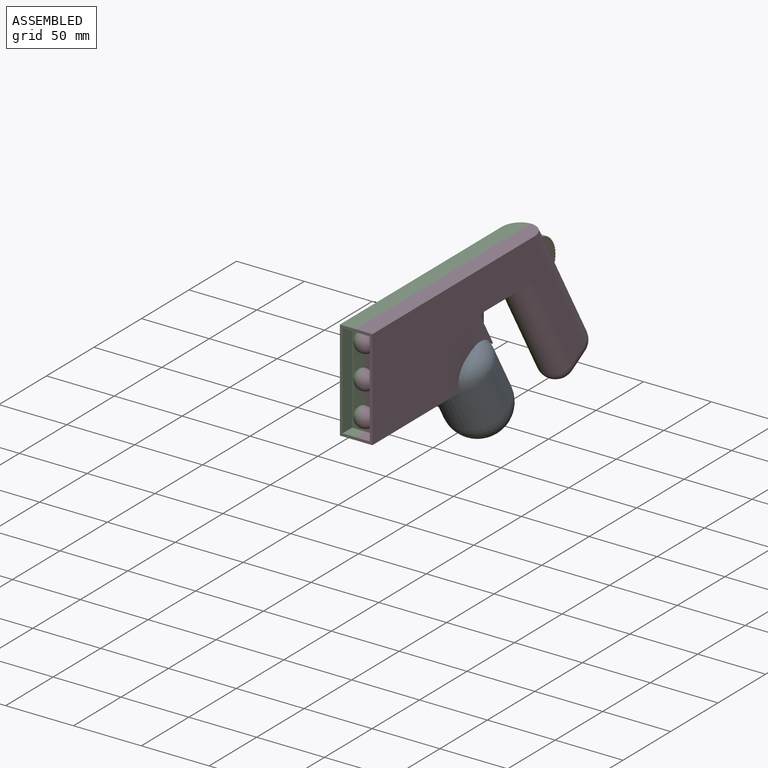
[diagram: assembled view]
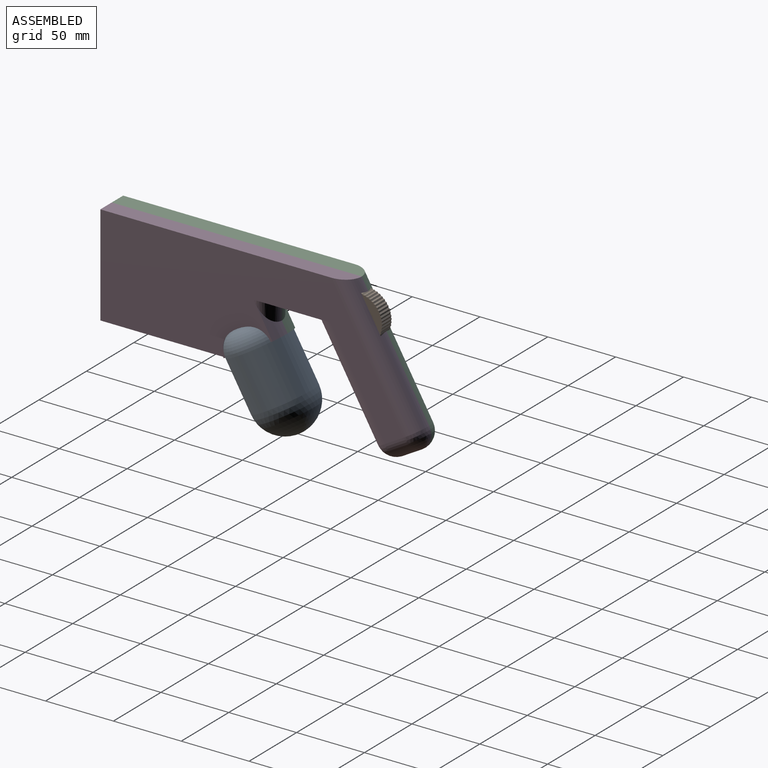
[diagram: assembled view, second angle]
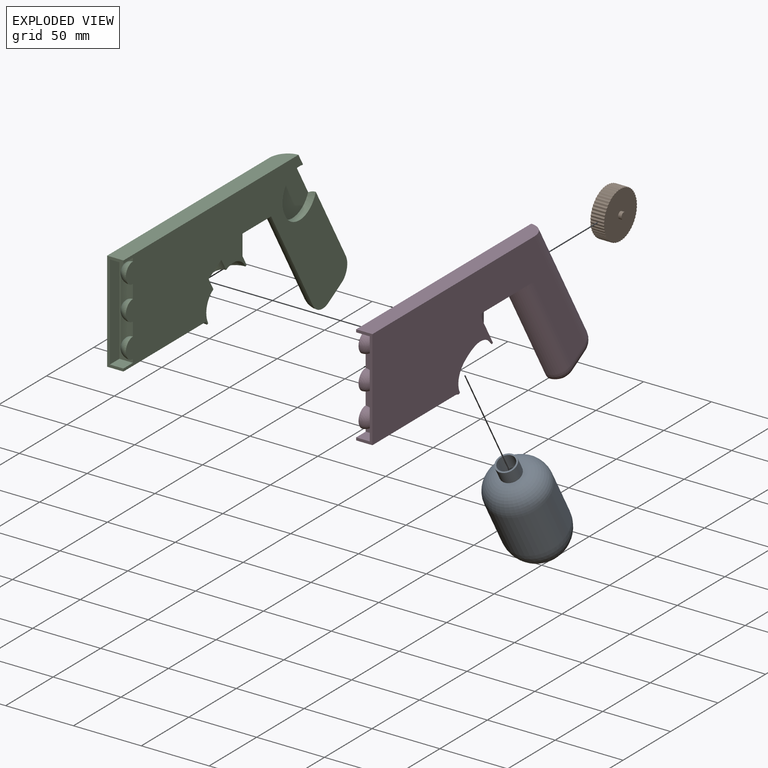
[diagram: exploded view]
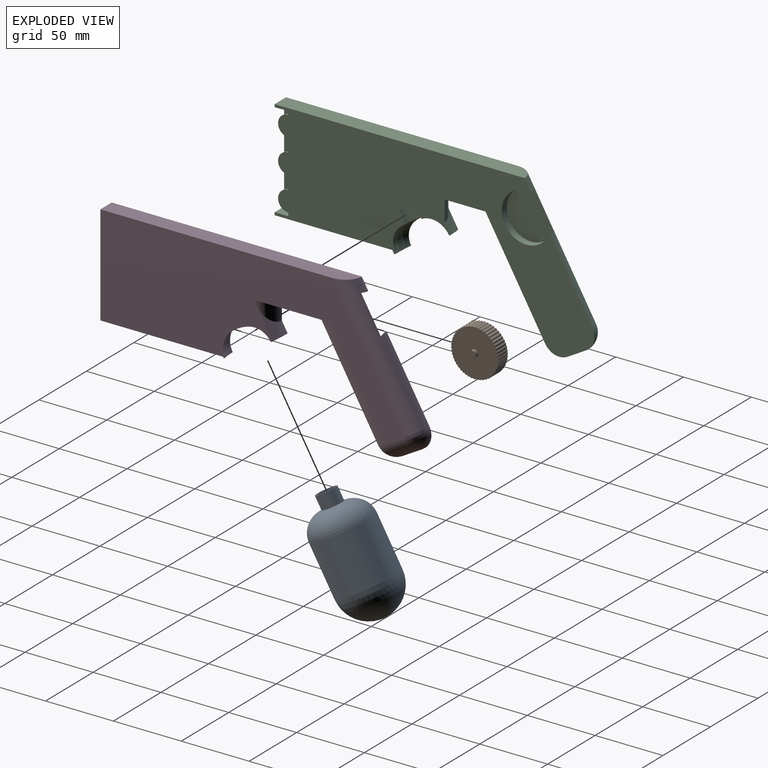
[diagram: exploded view, second angle]
ASSEMBLY  parts=4 mates=3
PART A: 9 faces, bbox 45x45x85 mm
  f0: cylinder r=22.5mm len=45mm, axis (0,0,-1), area 5301.4mm2, adj f1,f2
  f1: sphere r=22.5mm, area 3180.9mm2, adj f0
  f2: torus R=7.5mm, axis (0,0,1), area 2524mm2, adj f0,f3
  f3: cylinder r=7.5mm len=15mm, axis (0,0,-1), area 471.2mm2, adj f2,f4
  f4: plane 15x15mm, normal (0,0,1), area 52mm2, adj f3,f8
  f5: cylinder r=21.3mm len=42.6mm, axis (0,0,-1), area 5018.7mm2, adj f6,f7
  f6: sphere r=21.3mm, area 2850.6mm2, adj f5
  f7: torus R=7.5mm, axis (0,0,1), area 2270.2mm2, adj f5,f8
  f8: cylinder r=6.3mm len=12.6mm, axis (0,0,-1), area 445.4mm2, adj f4,f7
PART B: 106 faces, bbox 15x35.1x35 mm
  f0: plane 10x1.16mm, normal (0,-0.26,-0.97), area 12mm2, adj f1,f99,f100,f101
  f1: plane 10x0.93mm, normal (0,0.63,-0.77), area 12mm2, adj f0,f2,f100,f101
  f2: plane 10x1.19mm, normal (0,-0.13,-0.99), area 12mm2, adj f1,f3,f100,f101
  f3: plane 10x0.87mm, normal (0,0.72,-0.69), area 12mm2, adj f2,f4,f100,f101
  f4: plane 10x1.2mm, normal (0,-0.01,-1), area 12mm2, adj f3,f5,f100,f101
  f5: plane 10x0.97mm, normal (0,0.81,-0.59), area 12mm2, adj f4,f6,f100,f101
  f6: plane 10x1.19mm, normal (0,0.12,-0.99), area 12mm2, adj f5,f7,f100,f101
  f7: plane 10x1.05mm, normal (0,0.87,-0.49), area 12mm2, adj f6,f8,f100,f101
  f8: plane 10x1.16mm, normal (0,0.24,-0.97), area 12mm2, adj f7,f9,f100,f101
  f9: plane 10x1.11mm, normal (0,0.93,-0.37), area 12mm2, adj f8,f10,f100,f101
  f10: plane 10x1.12mm, normal (0,0.36,-0.93), area 12mm2, adj f9,f11,f100,f101
  f11: plane 10x1.16mm, normal (0,0.97,-0.26), area 12mm2, adj f10,f12,f100,f101
  f12: plane 10x1.06mm, normal (0,0.47,-0.88), area 12mm2, adj f11,f13,f100,f101
  f13: plane 10x1.19mm, normal (0,0.99,-0.13), area 12mm2, adj f12,f14,f100,f101
  f14: plane 10x0.98mm, normal (0,0.58,-0.81), area 12mm2, adj f13,f15,f100,f101
  f15: plane 10x1.2mm, normal (0,1,-0.01), area 12mm2, adj f14,f16,f100,f101
  f16: plane 10x0.88mm, normal (0,0.68,-0.73), area 12mm2, adj f15,f17,f100,f101
  f17: plane 10x1.19mm, normal (0,0.99,0.12), area 12mm2, adj f16,f18,f100,f101
  f18: plane 10x0.92mm, normal (0,0.77,-0.64), area 12mm2, adj f17,f19,f100,f101
  f19: plane 10x1.16mm, normal (0,0.97,0.24), area 12mm2, adj f18,f20,f100,f101
  f20: plane 10x1.01mm, normal (0,0.84,-0.54), area 12mm2, adj f19,f21,f100,f101
  f21: plane 10x1.12mm, normal (0,0.93,0.36), area 12mm2, adj f20,f22,f100,f101
  f22: plane 10x1.08mm, normal (0,0.9,-0.43), area 12mm2, adj f21,f23,f100,f101
  f23: plane 10x1.06mm, normal (0,0.88,0.48), area 12mm2, adj f22,f24,f100,f101
  f24: plane 10x1.14mm, normal (0,0.95,-0.32), area 12mm2, adj f23,f25,f100,f101
  f25: plane 10x0.98mm, normal (0,0.81,0.58), area 12mm2, adj f24,f26,f100,f101
  f26: plane 10x1.18mm, normal (0,0.98,-0.2), area 12mm2, adj f25,f27,f100,f101
  f27: plane 10x0.88mm, normal (0,0.73,0.68), area 12mm2, adj f26,f28,f100,f101
  f28: plane 10x1.2mm, normal (0,1,-0.07), area 12mm2, adj f27,f29,f100,f101
  f29: plane 10x0.92mm, normal (0,0.64,0.77), area 12mm2, adj f28,f30,f100,f101
  f30: plane 10x1.2mm, normal (0,1,0.05), area 12mm2, adj f29,f31,f100,f101
  f31: plane 10x1.01mm, normal (0,0.54,0.84), area 12mm2, adj f30,f32,f100,f101
  f32: plane 10x1.18mm, normal (0,0.98,0.18), area 12mm2, adj f31,f33,f100,f101
  f33: plane 10x1.08mm, normal (0,0.43,0.9), area 12mm2, adj f32,f34,f100,f101
  f34: plane 10x1.14mm, normal (0,0.95,0.3), area 12mm2, adj f33,f35,f100,f101
  f35: plane 10x1.14mm, normal (0,0.32,0.95), area 12mm2, adj f34,f36,f100,f101
  f36: plane 10x1.09mm, normal (0,0.91,0.42), area 12mm2, adj f35,f37,f100,f101
  f37: plane 10x1.18mm, normal (0,0.19,0.98), area 12mm2, adj f36,f38,f100,f101
  f38: plane 10x1.02mm, normal (0,0.85,0.53), area 12mm2, adj f37,f39,f100,f101
  f39: plane 10x1.2mm, normal (0,0.07,1), area 12mm2, adj f38,f40,f100,f101
  f40: plane 10x0.93mm, normal (0,0.78,0.63), area 12mm2, adj f39,f41,f100,f101
  f41: plane 10x1.2mm, normal (0,-0.06,1), area 12mm2, adj f40,f42,f100,f101
  f42: plane 10x0.87mm, normal (0,0.69,0.72), area 12mm2, adj f41,f43,f100,f101
  f43: plane 10x1.18mm, normal (0,-0.18,0.98), area 12mm2, adj f42,f44,f100,f101
  f44: plane 10x0.97mm, normal (0,0.59,0.8), area 12mm2, adj f43,f45,f100,f101
  f45: plane 10x1.14mm, normal (0,-0.3,0.95), area 12mm2, adj f44,f46,f100,f101
  f46: plane 10x1.05mm, normal (0,0.49,0.87), area 12mm2, adj f45,f47,f100,f101
  f47: plane 10x1.09mm, normal (0,-0.42,0.91), area 12mm2, adj f46,f48,f100,f101
  f48: plane 10x1.11mm, normal (0,0.38,0.93), area 12mm2, adj f47,f49,f100,f101
  f49: plane 10x1.02mm, normal (0,-0.53,0.85), area 12mm2, adj f48,f50,f100,f101
  f50: plane 10x1.16mm, normal (0,0.26,0.97), area 12mm2, adj f49,f51,f100,f101
  f51: plane 10x0.93mm, normal (0,-0.63,0.77), area 12mm2, adj f50,f52,f100,f101
  f52: plane 10x1.19mm, normal (0,0.13,0.99), area 12mm2, adj f51,f53,f100,f101
  f53: plane 10x0.87mm, normal (0,-0.72,0.69), area 12mm2, adj f52,f54,f100,f101
  f54: plane 10x1.2mm, normal (0,0.01,1), area 12mm2, adj f53,f55,f100,f101
  f55: plane 10x0.97mm, normal (0,-0.81,0.59), area 12mm2, adj f54,f56,f100,f101
  f56: plane 10x1.19mm, normal (0,-0.12,0.99), area 12mm2, adj f55,f57,f100,f101
  f57: plane 10x1.05mm, normal (0,-0.87,0.49), area 12mm2, adj f56,f58,f100,f101
  f58: plane 10x1.16mm, normal (0,-0.24,0.97), area 12mm2, adj f57,f59,f100,f101
  f59: plane 10x1.11mm, normal (0,-0.93,0.37), area 12mm2, adj f58,f60,f100,f101
  f60: plane 10x1.12mm, normal (0,-0.36,0.93), area 12mm2, adj f59,f61,f100,f101
  f61: plane 10x1.16mm, normal (0,-0.97,0.26), area 12mm2, adj f60,f62,f100,f101
  f62: plane 10x1.06mm, normal (0,-0.47,0.88), area 12mm2, adj f61,f63,f100,f101
  f63: plane 10x1.19mm, normal (0,-0.99,0.13), area 12mm2, adj f62,f64,f100,f101
  f64: plane 10x0.98mm, normal (0,-0.58,0.81), area 12mm2, adj f63,f65,f100,f101
  f65: plane 10x1.2mm, normal (0,-1,0.01), area 12mm2, adj f64,f66,f100,f101
  f66: plane 10x0.88mm, normal (0,-0.68,0.73), area 12mm2, adj f65,f67,f100,f101
  f67: plane 10x1.19mm, normal (0,-0.99,-0.12), area 12mm2, adj f66,f68,f100,f101
  f68: plane 10x0.92mm, normal (0,-0.77,0.64), area 12mm2, adj f67,f69,f100,f101
  f69: plane 10x1.16mm, normal (0,-0.97,-0.24), area 12mm2, adj f68,f70,f100,f101
  f70: plane 10x1.01mm, normal (0,-0.84,0.54), area 12mm2, adj f69,f71,f100,f101
  f71: plane 10x1.12mm, normal (0,-0.93,-0.36), area 12mm2, adj f70,f72,f100,f101
  f72: plane 10x1.08mm, normal (0,-0.9,0.43), area 12mm2, adj f71,f73,f100,f101
  f73: plane 10x1.06mm, normal (0,-0.88,-0.48), area 12mm2, adj f72,f74,f100,f101
  f74: plane 10x1.14mm, normal (0,-0.95,0.32), area 12mm2, adj f73,f75,f100,f101
  f75: plane 10x0.98mm, normal (0,-0.81,-0.58), area 12mm2, adj f74,f76,f100,f101
  f76: plane 10x1.18mm, normal (0,-0.98,0.2), area 12mm2, adj f75,f77,f100,f101
  f77: plane 10x0.88mm, normal (0,-0.73,-0.68), area 12mm2, adj f76,f78,f100,f101
  f78: plane 10x1.2mm, normal (0,-1,0.07), area 12mm2, adj f77,f79,f100,f101
  f79: plane 10x0.92mm, normal (0,-0.64,-0.77), area 12mm2, adj f78,f80,f100,f101
  f80: plane 10x1.2mm, normal (0,-1,-0.05), area 12mm2, adj f79,f81,f100,f101
  f81: plane 10x1.01mm, normal (0,-0.54,-0.84), area 12mm2, adj f80,f82,f100,f101
  f82: plane 10x1.18mm, normal (0,-0.98,-0.18), area 12mm2, adj f81,f83,f100,f101
  f83: plane 10x1.08mm, normal (0,-0.43,-0.9), area 12mm2, adj f82,f84,f100,f101
  f84: plane 10x1.14mm, normal (0,-0.95,-0.3), area 12mm2, adj f83,f85,f100,f101
  f85: plane 10x1.14mm, normal (0,-0.32,-0.95), area 12mm2, adj f84,f86,f100,f101
  f86: plane 10x1.09mm, normal (0,-0.91,-0.42), area 12mm2, adj f85,f87,f100,f101
  f87: plane 10x1.18mm, normal (0,-0.19,-0.98), area 12mm2, adj f86,f88,f100,f101
  f88: plane 10x1.02mm, normal (0,-0.85,-0.53), area 12mm2, adj f87,f89,f100,f101
  f89: plane 10x1.2mm, normal (0,-0.07,-1), area 12mm2, adj f88,f90,f100,f101
  f90: plane 10x0.93mm, normal (0,-0.78,-0.63), area 12mm2, adj f89,f91,f100,f101
  f91: plane 10x1.2mm, normal (0,0.06,-1), area 12mm2, adj f90,f92,f100,f101
  f92: plane 10x0.87mm, normal (0,-0.69,-0.72), area 12mm2, adj f91,f93,f100,f101
  f93: plane 10x1.18mm, normal (0,0.18,-0.98), area 12mm2, adj f92,f94,f100,f101
  f94: plane 10x0.97mm, normal (0,-0.59,-0.8), area 12mm2, adj f93,f95,f100,f101
  f95: plane 10x1.14mm, normal (0,0.3,-0.95), area 12mm2, adj f94,f96,f100,f101
  f96: plane 10x1.05mm, normal (0,-0.49,-0.87), area 12mm2, adj f95,f97,f100,f101
  f97: plane 10x1.09mm, normal (0,0.42,-0.91), area 12mm2, adj f96,f98,f100,f101
  f98: plane 10x1.11mm, normal (0,-0.38,-0.93), area 12mm2, adj f97,f99,f100,f101
  f99: plane 10x1.02mm, normal (0,0.53,-0.85), area 12mm2, adj f0,f98,f100,f101
  f100: plane 35.06x35.04mm, normal (1,0,0), area 917.5mm2, adj f0,f1,f2,f3,f4,f5,f6,f7
  f101: plane 35.06x35.04mm, normal (-1,0,0), area 917.5mm2, adj f0,f1,f2,f3,f4,f5,f6,f7
  f102: plane 5x5mm, normal (-1,0,0), area 19.6mm2, adj f103
  f103: cylinder r=2.5mm len=5mm, axis (-1,0,0), area 39.3mm2, adj f101,f102
  f104: cylinder r=2.5mm len=5mm, axis (-1,0,0), area 39.3mm2, adj f100,f105
  f105: plane 5x5mm, normal (1,0,0), area 19.6mm2, adj f104
PART C: 28 faces, bbox 22.8x235.6x118.2 mm
  f0: plane 235.61x112.21mm, normal (1,0,0), area 12412.1mm2, adj f4,f5,f6,f7,f8,f9,f10,f11
  f1: plane 70x10mm, normal (1,0,0), area 700mm2, adj f12,f16,f17,f18
  f2: plane 223.61x100.21mm, normal (-1,0,0), area 11217mm2, adj f5,f8,f9,f10,f11,f12,f19,f20
  f3: plane 36x34.55mm, normal (1,0,0), area 872.7mm2, adj f7,f8
  f4: sphere r=12mm, area 226.2mm2, adj f0,f5,f9
  f5: cylinder r=12mm len=19.86mm, axis (0,-0.87,-0.5), area 301.6mm2, adj f0,f2,f4,f6
  f6: sphere r=12mm, area 226.2mm2, adj f0,f5,f8
  f7: cylinder r=18mm len=36mm, axis (-1,0,0), area 429.4mm2, adj f0,f3,f8
  f8: cylinder r=12mm len=98.21mm, axis (0,0.5,-0.87), area 1774.3mm2, adj f0,f2,f3,f6,f7,f20
  f9: cylinder r=12mm len=82.21mm, axis (0,-0.5,0.87), area 1611.3mm2, adj f0,f2,f4,f11
  f10: cylinder r=12mm len=15.1mm, axis (0,0,-1), area 201.9mm2, adj f0,f2,f11,f27
  f11: plane 55.86x12mm, normal (0,0,-1), area 426.6mm2, adj f0,f2,f9,f10
  f12: plane 74x12mm, normal (0,-1,0), area 188mm2, adj f0,f1,f2,f17,f18,f19,f20
  f13: sphere r=7.5mm, area 176.7mm2, adj f0,f16
  f14: sphere r=7.5mm, area 176.7mm2, adj f0,f16
  f15: sphere r=7.5mm, area 176.7mm2, adj f0,f16
  f16: plane 70x10mm, normal (0,-1,0), area 434.9mm2, adj f0,f1,f13,f14,f15,f17,f18
  f17: plane 10x10mm, normal (0,0,1), area 100mm2, adj f0,f1,f12,f16
  f18: plane 10x10mm, normal (0,0,-1), area 100mm2, adj f0,f1,f12,f16
  f19: plane 90.46x12mm, normal (0,0,-1), area 1055.3mm2, adj f0,f2,f12,f26
  f20: plane 184.23x12mm, normal (0,0,1), area 2175mm2, adj f0,f2,f8,f12
  f21: plane 13.42x7.75mm, normal (0,0.5,-0.87), area 94.3mm2, adj f0,f22
  f22: cylinder r=7.75mm len=18.42mm, axis (0,0.5,-0.87), area 243.5mm2, adj f0,f21,f25
  f23: plane 12x4mm, normal (0,0.5,-0.87), area 15.1mm2, adj f0,f2,f25,f27
  f24: plane 12x4mm, normal (0,0.5,-0.87), area 15.1mm2, adj f0,f2,f25,f26
  f25: torus R=7.75mm, axis (0,0.5,-0.87), area 645.8mm2, adj f0,f2,f22,f23,f24
  f26: cylinder r=23.95mm len=12mm, axis (0,0.5,-0.87), area 28.1mm2, adj f0,f2,f19,f24
  f27: cylinder r=23.95mm len=24.99mm, axis (0,0.5,-0.87), area 151.8mm2, adj f0,f2,f10,f23
PART D: 28 faces, bbox 22.8x235.6x118.2 mm
  f0: cylinder r=23.95mm len=24.99mm, axis (0,0.5,-0.87), area 151.8mm2, adj f3,f5,f24,f27
  f1: cylinder r=23.95mm len=12mm, axis (0,0.5,-0.87), area 28.1mm2, adj f4,f5,f7,f27
  f2: torus R=7.75mm, axis (0,0.5,-0.87), area 645.8mm2, adj f3,f4,f5,f19,f27
  f3: plane 12x4mm, normal (0,0.5,-0.87), area 15.1mm2, adj f0,f2,f5,f27
  f4: plane 12x4mm, normal (0,0.5,-0.87), area 15.1mm2, adj f1,f2,f5,f27
  f5: plane 223.61x100.21mm, normal (1,0,0), area 11216.8mm2, adj f0,f1,f2,f3,f4,f6,f7,f11
  f6: plane 184.23x12mm, normal (0,0,1), area 2175mm2, adj f5,f11,f15,f27
  f7: plane 90.46x12mm, normal (0,0,-1), area 1055.3mm2, adj f1,f5,f11,f27
  f8: plane 10x10mm, normal (0,0,-1), area 100mm2, adj f9,f11,f12,f27
  f9: plane 70x10mm, normal (-1,0,0), area 700mm2, adj f8,f10,f11,f12
  f10: plane 10x10mm, normal (0,0,1), area 100mm2, adj f9,f11,f12,f27
  f11: plane 74x12mm, normal (0,-1,0), area 188mm2, adj f5,f6,f7,f8,f9,f10,f27
  f12: plane 70x10mm, normal (0,-1,0), area 434.9mm2, adj f8,f9,f10,f16,f17,f18,f27
  f13: plane 55.86x12mm, normal (0,0,-1), area 426.6mm2, adj f5,f14,f24,f27
  f14: cylinder r=12mm len=82.21mm, axis (0,-0.5,0.87), area 1611.3mm2, adj f5,f13,f23,f27
  f15: cylinder r=12mm len=98.21mm, axis (0,0.5,-0.87), area 1774.3mm2, adj f5,f6,f21,f25,f26,f27
  f16: sphere r=7.5mm, area 176.7mm2, adj f12,f27
  f17: sphere r=7.5mm, area 176.7mm2, adj f12,f27
  f18: sphere r=7.5mm, area 176.7mm2, adj f12,f27
  f19: cylinder r=7.75mm len=18.42mm, axis (0,0.5,-0.87), area 243.5mm2, adj f2,f20,f27
  f20: plane 13.42x7.75mm, normal (0,0.5,-0.87), area 94.3mm2, adj f19,f27
  f21: sphere r=12mm, area 226.2mm2, adj f15,f22,f27
  f22: cylinder r=12mm len=19.86mm, axis (0,-0.87,-0.5), area 301.6mm2, adj f5,f21,f23,f27
  f23: sphere r=12mm, area 226.2mm2, adj f14,f22,f27
  f24: cylinder r=12mm len=15.1mm, axis (0,0,-1), area 201.9mm2, adj f0,f5,f13,f27
  f25: cylinder r=18mm len=36mm, axis (-1,0,0), area 429.4mm2, adj f15,f26,f27
  f26: plane 36x34.55mm, normal (-1,0,0), area 872.7mm2, adj f15,f25
  f27: plane 235.61x112.21mm, normal (-1,0,0), area 12412.1mm2, adj f0,f1,f2,f3,f4,f6,f7,f8
PLACE A rot(axis=(1,0,0),30deg) t=(-1.89,46.33,-93.97)mm
PLACE B rot(axis=(0,-0.86,0.51),180deg) t=(-1.89,92.8,-3.49)mm
PLACE C t=(-1.89,-82.57,-14.5)mm
PLACE D t=(-1.89,-82.57,-14.5)mm fixed
MATE fastened D.f2 <-> A.f0  axis (0,0.5,-0.87) through (-1.89,8.83,-29.01)mm
MATE revolute B.f103 <-> D.f25  axis (-1,0,0) through (-6.89,92.8,-3.49)mm
MATE fastened C.f0 <-> D.f27  axis (1,0,0) through (-1.89,32.78,-7.5)mm
